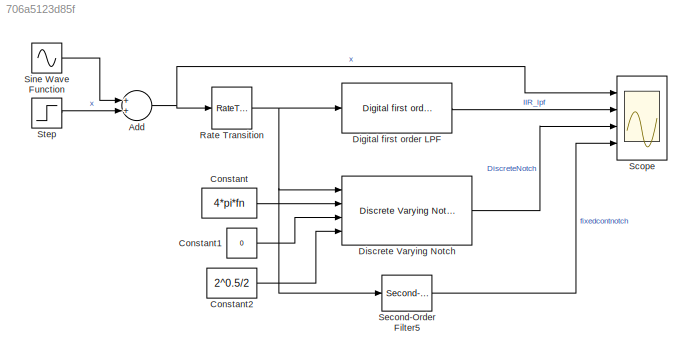
MODEL slx_706a5123d85f
KIND model
CONFIG AbsTol = auto
CONFIG EnableMultiTasking = off
CONFIG FixedStep = 50e-6
CONFIG MaxStep = auto
CONFIG MinStep = auto
CONFIG RelTol = 1e-3
CONFIG SampleTimeConstraint = Unconstrained
CONFIG Solver = FixedStepDiscrete
CONFIG SolverName = FixedStepDiscrete
CONFIG StartTime = 0.0
CONFIG StopTime = 0.1
BLOCK [Sum] Add
  InputSameDT = off
  OutDataTypeStr = Inherit: Inherit via internal rule
  Ports = [2, 1]
  SaturateOnIntegerOverflow = off
BLOCK [Constant] Constant
  Value = 4*pi*fn
BLOCK [Constant] Constant1
  Value = 0
BLOCK [Constant] Constant2
  Value = 2^0.5/2
BLOCK [Reference] Digital first order LPF  REF=PhD_Library/Offshore_Oil_and_Wind/Digital first order LPF
  Ports = [1, 1]
  SourceBlock = PhD_Library/Offshore_Oil_and_Wind/Digital first order LPF
  SourceType = Digital first order low pass filter
BLOCK [Reference] Discrete Varying Notch  REF=cstblocks/Linear Parameter Varying/Discrete Varying Notch
  Ports = [4, 1]
  SourceBlock = cstblocks/Linear Parameter Varying/Discrete Varying Notch
  SourceProductBaseCode = CT
  SourceProductName = Control System Toolbox
  SourceType = Discrete Varying Notch
BLOCK [RateTransition] Rate Transition
  OutPortSampleTime = Ts
BLOCK [Scope] Scope
  Floating = off
  NumInputPorts = 4
  Ports = [4]
  ScopeSpecificationString = Simulink.scopes.TimeScopeBlockCfg('CurrentConfiguration', extmgr.ConfigurationSet(extmgr.Configuration('Core','General UI',true),extmgr.Configuration('Core','Source UI',true),extmgr.Configuration('Sources','WiredSimulink',true),extmgr.Configuration('Visuals','Time Domain',true,'SerializedDisplays',{struct('MinYLimReal','-0.00159','MaxYLimReal','0.00243','YLabelReal','','MinYLimMag','0.00000','MaxY...<+1922ch>
BLOCK [Reference] Second-Order Filter5  REF=powerlib_meascontrol/Filters/Second-Order
Filter
  Ports = [1, 1]
  SourceBlock = powerlib_meascontrol/Filters/Second-Order\nFilter
  SourceProductBaseCode = PS
  SourceProductName = Simscape Power Systems
  SourceType = Second-Order Filter
BLOCK [Sin] Sine Wave Function
  Frequency = 4*pi*fn
  Ports = [0, 1]
  SampleTime = 0
BLOCK [Step] Step
  After = 2
  SampleTime = 0
  Time = 100000
NET Add:1 -> Rate Transition:1, Scope:1
LINE Constant1:1 -> Discrete Varying Notch:3
LINE Constant2:1 -> Discrete Varying Notch:4
LINE Constant:1 -> Discrete Varying Notch:2
LINE Digital first order LPF:1 -> Scope:2
LINE Discrete Varying Notch:1 -> Scope:3
NET Rate Transition:1 -> Digital first order LPF:1, Discrete Varying Notch:1, Second-Order Filter5:1
LINE Second-Order Filter5:1 -> Scope:4
LINE Sine Wave Function:1 -> Add:1
LINE Step:1 -> Add:2
note: NET lines group one-source signal fan-out (src -> all destinations, sorted); 1:1 wires keep LINE
